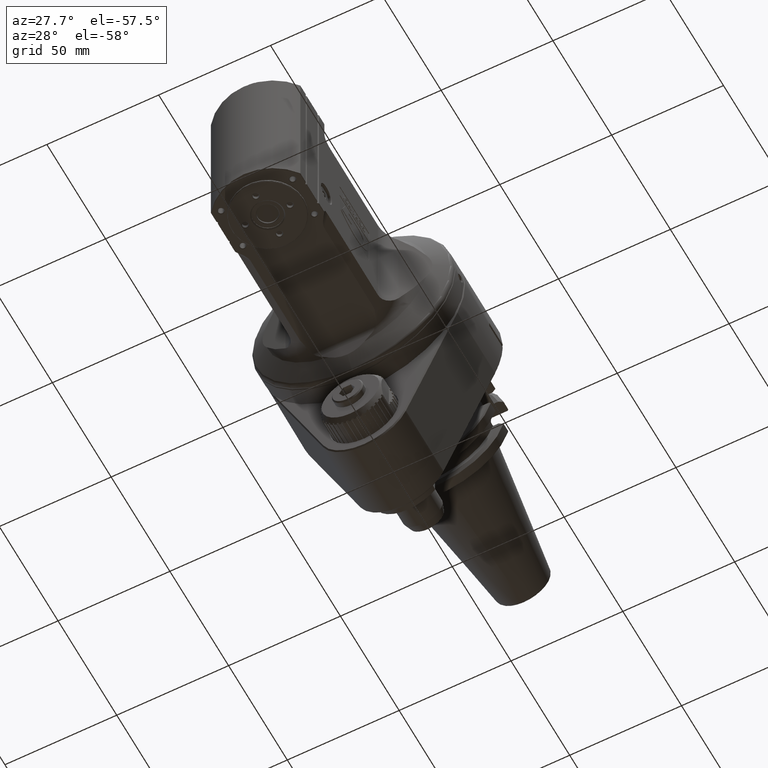
[diagram: clean part render]
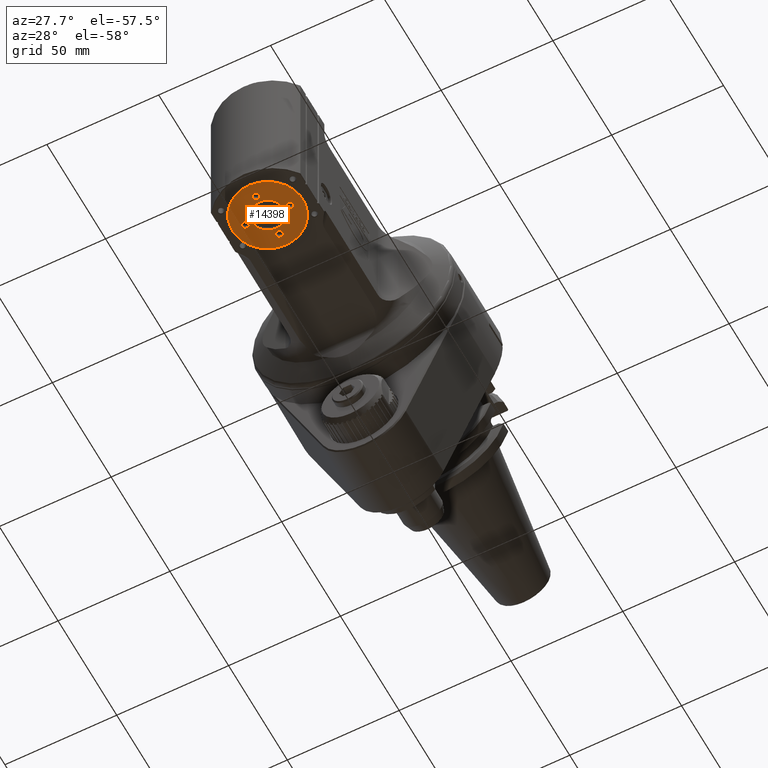
[diagram: same view with one face highlighted and labeled with its STEP entity id]
A machine part, auxiliary view. The second image highlights one B-rep face of the part: STEP entity #14398.
In plain terms, the highlighted planar face has unit normal (0, -0, 1).
Its self-contained STEP definition (entity closure, byte-faithful):
#394=FACE_BOUND('',#3047,.T.);
#395=FACE_BOUND('',#3048,.T.);
#396=FACE_BOUND('',#3049,.T.);
#397=FACE_BOUND('',#3050,.T.);
#398=FACE_BOUND('',#3051,.T.);
#1173=CIRCLE('',#15821,15.79999836819);
#1174=CIRCLE('',#15823,6.999994666416);
#1175=CIRCLE('',#15824,1.5499372716797);
#1176=CIRCLE('',#15825,1.5499372716797);
#1177=CIRCLE('',#15826,1.5499372716797);
#1178=CIRCLE('',#15827,1.5499372716797);
#2167=FACE_OUTER_BOUND('',#3046,.T.);
#3046=EDGE_LOOP('',(#12992));
#3047=EDGE_LOOP('',(#12993));
#3048=EDGE_LOOP('',(#12994));
#3049=EDGE_LOOP('',(#12995));
#3050=EDGE_LOOP('',(#12996));
#3051=EDGE_LOOP('',(#12997));
#6820=VERTEX_POINT('',#26534);
#6821=VERTEX_POINT('',#26538);
#6822=VERTEX_POINT('',#26540);
#6823=VERTEX_POINT('',#26542);
#6824=VERTEX_POINT('',#26544);
#6825=VERTEX_POINT('',#26546);
#8892=EDGE_CURVE('',#6820,#6820,#1173,.T.);
#8893=EDGE_CURVE('',#6821,#6821,#1174,.T.);
#8894=EDGE_CURVE('',#6822,#6822,#1175,.T.);
#8895=EDGE_CURVE('',#6823,#6823,#1176,.T.);
#8896=EDGE_CURVE('',#6824,#6824,#1177,.T.);
#8897=EDGE_CURVE('',#6825,#6825,#1178,.T.);
#12992=ORIENTED_EDGE('',*,*,#8892,.F.);
#12993=ORIENTED_EDGE('',*,*,#8893,.T.);
#12994=ORIENTED_EDGE('',*,*,#8894,.T.);
#12995=ORIENTED_EDGE('',*,*,#8895,.T.);
#12996=ORIENTED_EDGE('',*,*,#8896,.T.);
#12997=ORIENTED_EDGE('',*,*,#8897,.T.);
#13634=PLANE('',#15822);
#14398=ADVANCED_FACE('',(#2167,#394,#395,#396,#397,#398),#13634,.F.);
#15821=AXIS2_PLACEMENT_3D('',#26536,#19719,#19720);
#15822=AXIS2_PLACEMENT_3D('',#26537,#19721,#19722);
#15823=AXIS2_PLACEMENT_3D('',#26539,#19723,#19724);
#15824=AXIS2_PLACEMENT_3D('',#26541,#19725,#19726);
#15825=AXIS2_PLACEMENT_3D('',#26543,#19727,#19728);
#15826=AXIS2_PLACEMENT_3D('',#26545,#19729,#19730);
#15827=AXIS2_PLACEMENT_3D('',#26547,#19731,#19732);
#19719=DIRECTION('center_axis',(0.,0.,1.));
#19720=DIRECTION('ref_axis',(-1.,0.,0.));
#19721=DIRECTION('center_axis',(0.,0.,1.));
#19722=DIRECTION('ref_axis',(-1.,0.,0.));
#19723=DIRECTION('center_axis',(0.,0.,1.));
#19724=DIRECTION('ref_axis',(1.,0.,0.));
#19725=DIRECTION('center_axis',(0.,0.,1.));
#19726=DIRECTION('ref_axis',(0.,-1.,0.));
#19727=DIRECTION('center_axis',(0.,0.,1.));
#19728=DIRECTION('ref_axis',(0.,-1.,0.));
#19729=DIRECTION('center_axis',(0.,0.,1.));
#19730=DIRECTION('ref_axis',(0.,-1.,0.));
#19731=DIRECTION('center_axis',(0.,0.,1.));
#19732=DIRECTION('ref_axis',(0.,-1.,0.));
#26534=CARTESIAN_POINT('',(-1.93494174281361E-15,-41.200001631811,-29.749999999999));
#26536=CARTESIAN_POINT('Origin',(0.,-57.,-29.75));
#26537=CARTESIAN_POINT('Origin',(0.,-57.,-29.75));
#26538=CARTESIAN_POINT('',(8.57252106227355E-16,-50.0000053335851,-29.7500000000011));
#26539=CARTESIAN_POINT('Origin',(0.,-57.,-29.75));
#26540=CARTESIAN_POINT('',(-10.,-55.4500627283203,-29.75));
#26541=CARTESIAN_POINT('Origin',(-10.,-57.,-29.75));
#26542=CARTESIAN_POINT('',(1.89812571864172E-16,-45.4500627283203,-29.75));
#26543=CARTESIAN_POINT('Origin',(0.,-47.,-29.75));
#26544=CARTESIAN_POINT('',(10.,-55.4500627283203,-29.75));
#26545=CARTESIAN_POINT('Origin',(10.,-57.,-29.75));
#26546=CARTESIAN_POINT('',(1.89812571864172E-16,-65.4500627283203,-29.75));
#26547=CARTESIAN_POINT('Origin',(0.,-67.,-29.75));